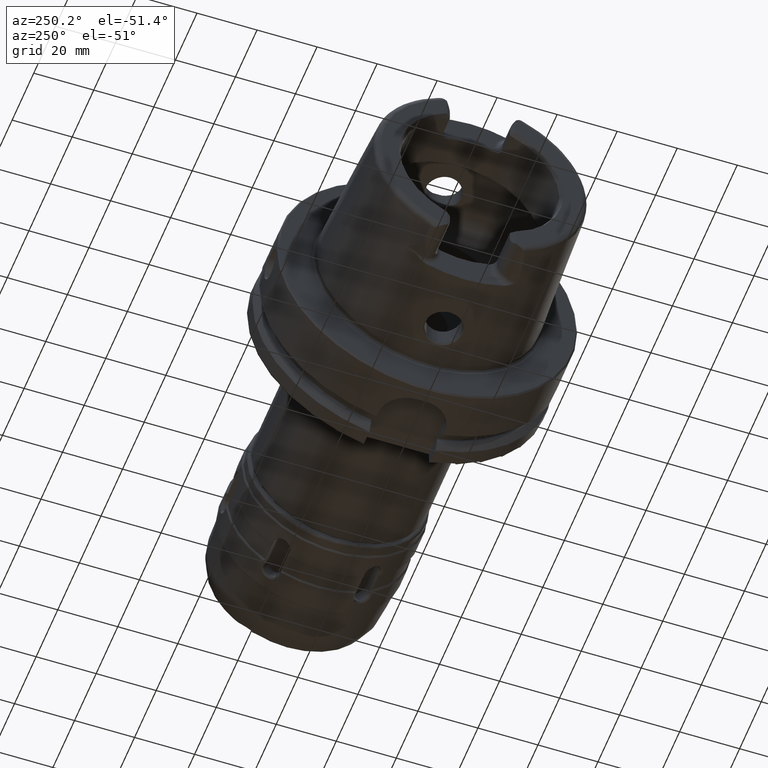
[diagram: clean part render]
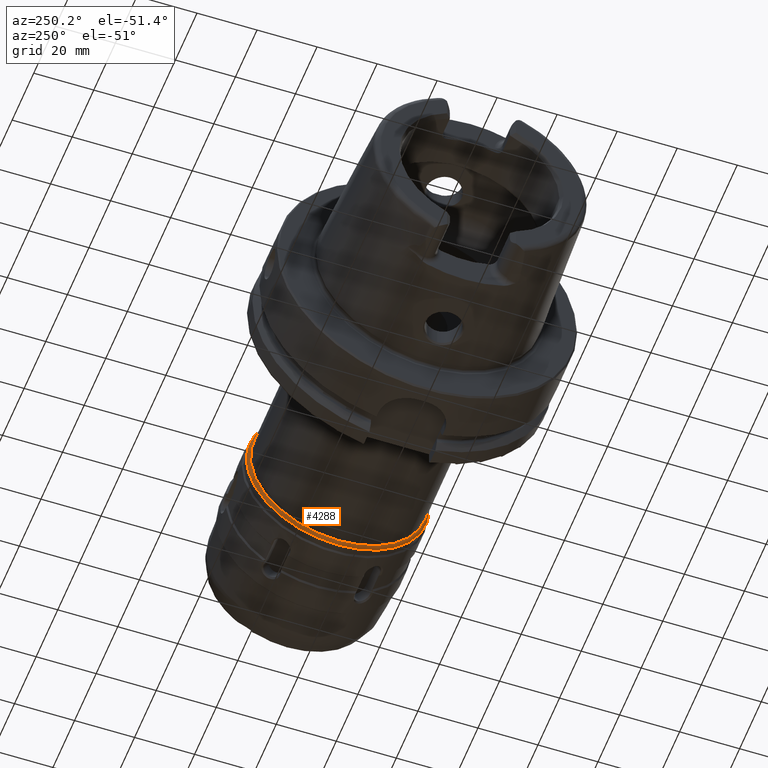
[diagram: same view with one face highlighted and labeled with its STEP entity id]
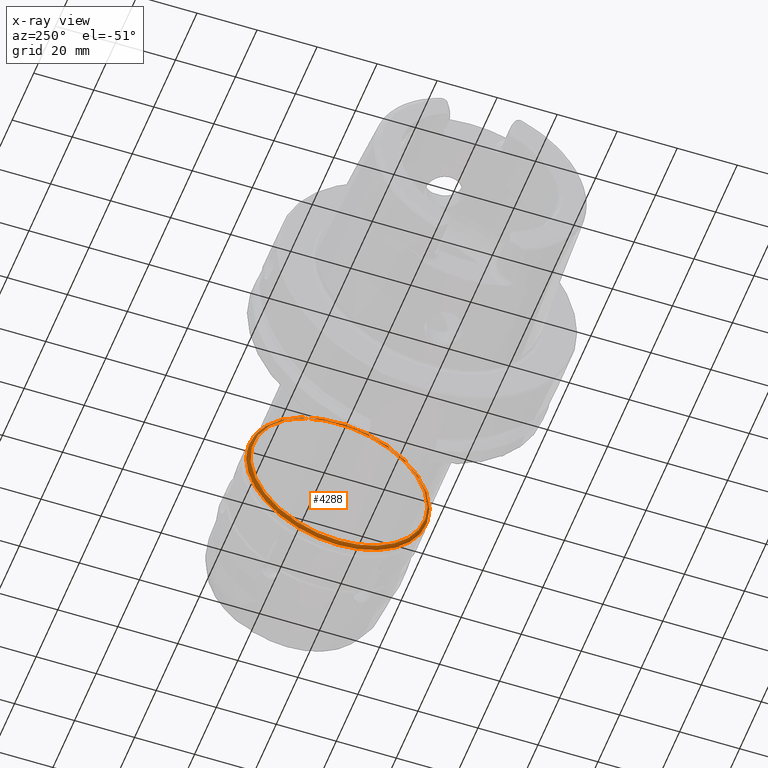
[diagram: x-ray of the same camera — body ghosted, the highlighted face saturated]
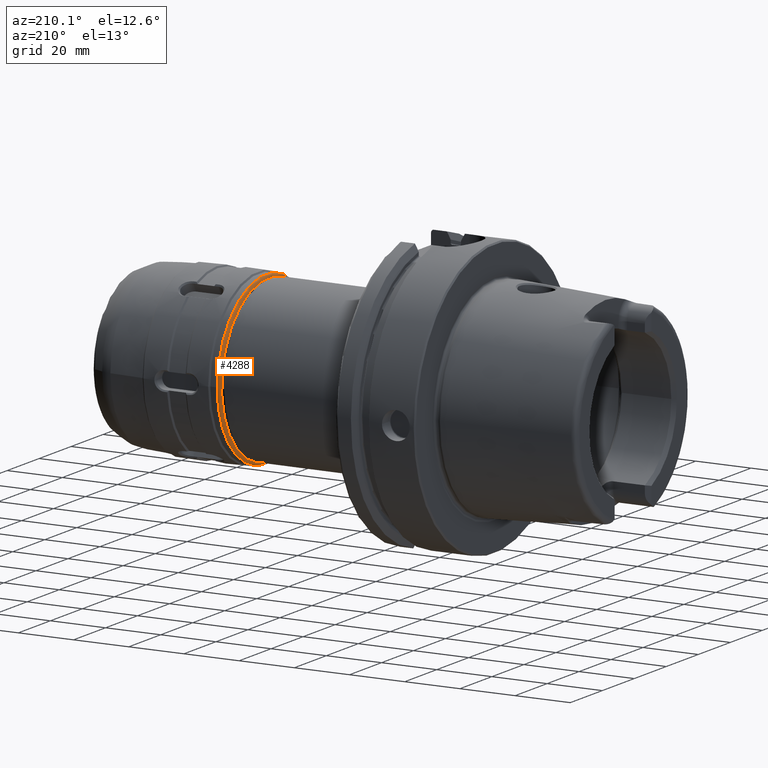
[diagram: same view with one face highlighted and labeled with its STEP entity id]
A machine part, auxiliary view. The second image highlights one B-rep face of the part: STEP entity #4288.
The next image is the same camera in x-ray: the body ghosted, the highlighted face saturated — about 13% of this face is hidden behind the body in this view.
A second angle (auxiliary view) of the same face is appended — the face is thin or edge-on in the first view.
In plain terms, the highlighted toroidal blend (fillet) surface has major radius 29.5 mm and minor (blend) radius 1 mm.
Its self-contained STEP definition (entity closure, byte-faithful):
#1103=FACE_OUTER_BOUND('',#1352,.T.);
#1352=EDGE_LOOP('',(#3972,#3973,#3974,#3975,#3976,#3977,#3978));
#1586=CIRCLE('',#4796,29.5);
#1587=CIRCLE('',#4797,29.5);
#1613=CIRCLE('',#4832,30.5);
#1614=CIRCLE('',#4833,30.5);
#1615=CIRCLE('',#4834,1.);
#1616=CIRCLE('',#4835,30.5);
#2033=VERTEX_POINT('',#9223);
#2034=VERTEX_POINT('',#9224);
#2057=VERTEX_POINT('',#9287);
#2058=VERTEX_POINT('',#9288);
#2059=VERTEX_POINT('',#9290);
#2673=EDGE_CURVE('',#2033,#2034,#1586,.T.);
#2674=EDGE_CURVE('',#2034,#2033,#1587,.T.);
#2704=EDGE_CURVE('',#2057,#2058,#1613,.T.);
#2705=EDGE_CURVE('',#2058,#2059,#1614,.T.);
#2706=EDGE_CURVE('',#2059,#2034,#1615,.T.);
#2707=EDGE_CURVE('',#2059,#2057,#1616,.T.);
#3972=ORIENTED_EDGE('',*,*,#2704,.T.);
#3973=ORIENTED_EDGE('',*,*,#2705,.T.);
#3974=ORIENTED_EDGE('',*,*,#2706,.T.);
#3975=ORIENTED_EDGE('',*,*,#2674,.T.);
#3976=ORIENTED_EDGE('',*,*,#2673,.T.);
#3977=ORIENTED_EDGE('',*,*,#2706,.F.);
#3978=ORIENTED_EDGE('',*,*,#2707,.T.);
#4067=TOROIDAL_SURFACE('',#4831,29.5,1.);
#4288=ADVANCED_FACE('',(#1103),#4067,.T.);
#4796=AXIS2_PLACEMENT_3D('',#9225,#5947,#5948);
#4797=AXIS2_PLACEMENT_3D('',#9226,#5949,#5950);
#4831=AXIS2_PLACEMENT_3D('',#9286,#6021,#6022);
#4832=AXIS2_PLACEMENT_3D('',#9289,#6023,#6024);
#4833=AXIS2_PLACEMENT_3D('',#9291,#6025,#6026);
#4834=AXIS2_PLACEMENT_3D('',#9292,#6027,#6028);
#4835=AXIS2_PLACEMENT_3D('',#9293,#6029,#6030);
#5947=DIRECTION('center_axis',(1.,0.,0.));
#5948=DIRECTION('ref_axis',(0.,-1.,1.83697019872103E-16));
#5949=DIRECTION('center_axis',(1.,0.,0.));
#5950=DIRECTION('ref_axis',(0.,-1.,1.83697019872103E-16));
#6021=DIRECTION('center_axis',(1.,0.,0.));
#6022=DIRECTION('ref_axis',(0.,0.,-1.));
#6023=DIRECTION('center_axis',(-1.,0.,0.));
#6024=DIRECTION('ref_axis',(0.,-1.,1.83697019872103E-16));
#6025=DIRECTION('center_axis',(-1.,0.,0.));
#6026=DIRECTION('ref_axis',(0.,-1.,1.83697019872103E-16));
#6027=DIRECTION('center_axis',(0.,-1.,-1.22464679914735E-16));
#6028=DIRECTION('ref_axis',(0.,-1.22464679914735E-16,1.));
#6029=DIRECTION('center_axis',(-1.,0.,0.));
#6030=DIRECTION('ref_axis',(0.,-1.,1.83697019872103E-16));
#9223=CARTESIAN_POINT('',(0.,29.5,-1.80635402874235E-15));
#9224=CARTESIAN_POINT('',(0.,-3.61270805748469E-15,29.5));
#9225=CARTESIAN_POINT('Origin',(0.,0.,0.));
#9226=CARTESIAN_POINT('Origin',(0.,0.,0.));
#9286=CARTESIAN_POINT('Origin',(1.,0.,0.));
#9287=CARTESIAN_POINT('',(1.,30.5,-9.33793184349857E-15));
#9288=CARTESIAN_POINT('',(1.,-30.5,-3.73517273739943E-15));
#9289=CARTESIAN_POINT('Origin',(1.,0.,0.));
#9290=CARTESIAN_POINT('',(1.,-3.73517273739943E-15,30.5));
#9291=CARTESIAN_POINT('Origin',(1.,0.,0.));
#9292=CARTESIAN_POINT('Origin',(1.,-3.61270805748469E-15,29.5));
#9293=CARTESIAN_POINT('Origin',(1.,0.,0.));